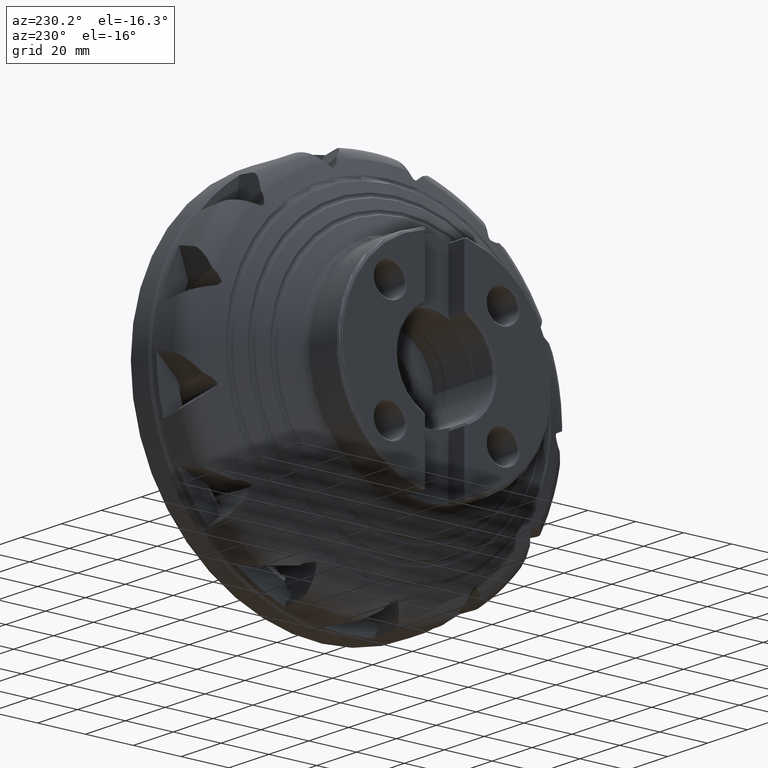
[diagram: clean part render]
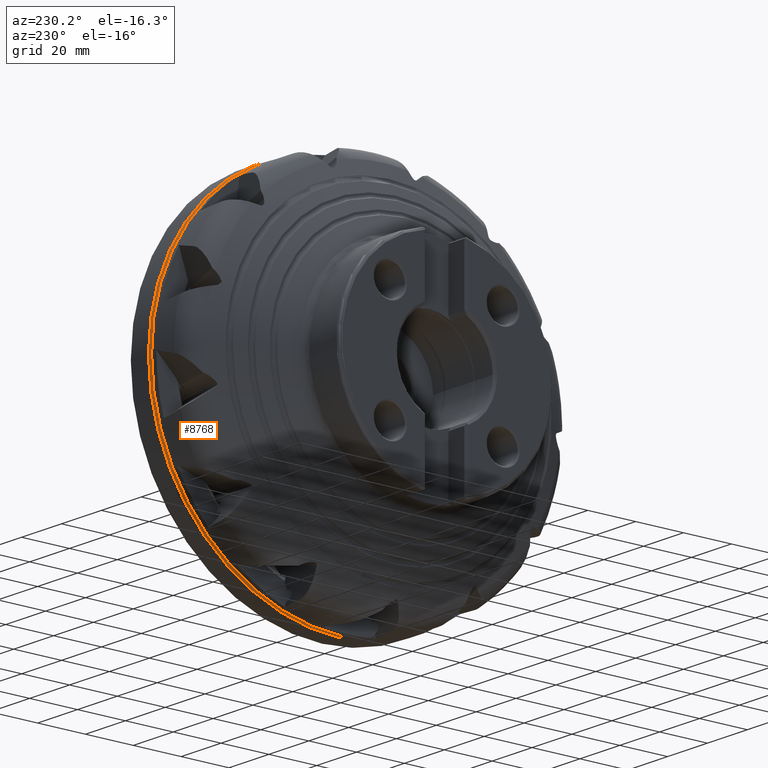
[diagram: same view with one face highlighted and labeled with its STEP entity id]
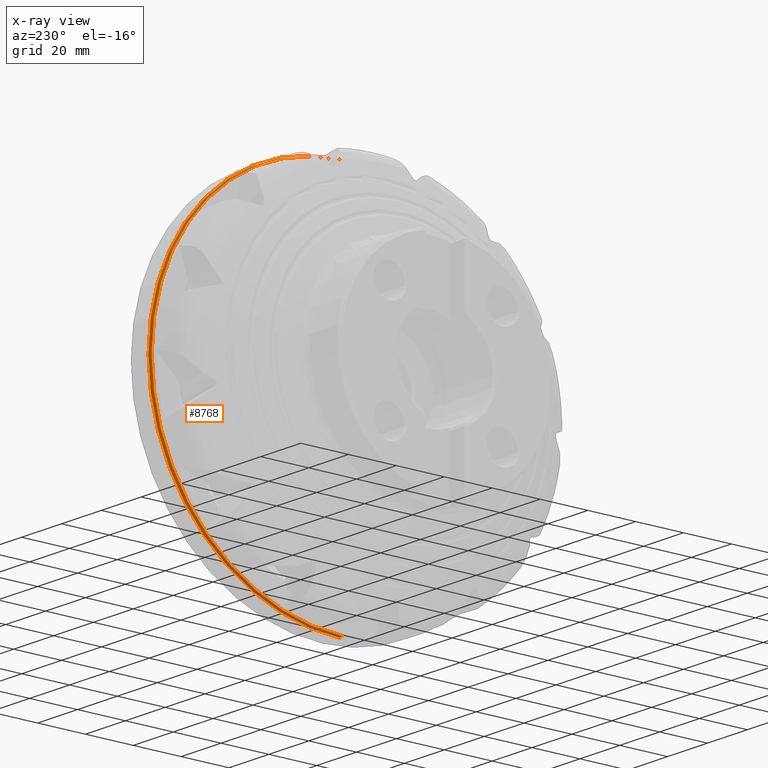
[diagram: x-ray of the same camera — body ghosted, the highlighted face saturated]
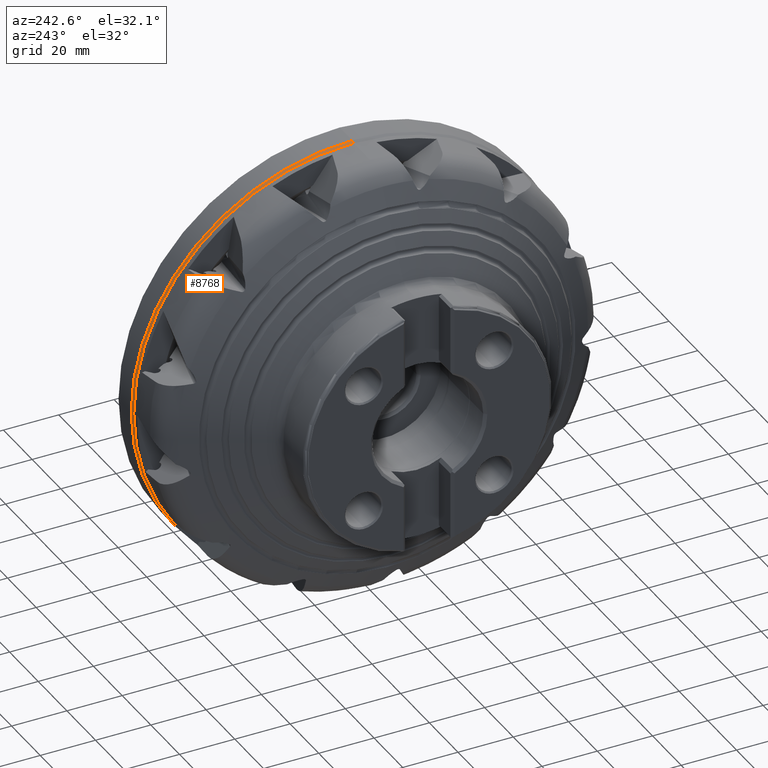
[diagram: same view with one face highlighted and labeled with its STEP entity id]
A machine part, auxiliary view. The second image highlights one B-rep face of the part: STEP entity #8768.
The next image is the same camera in x-ray: the body ghosted, the highlighted face saturated — about 0% of this face is hidden behind the body in this view.
A second angle (auxiliary view) of the same face is appended — the face is thin or edge-on in the first view.
In plain terms, the highlighted conical surface has half-angle 17.994 deg.
Its self-contained STEP definition (entity closure, byte-faithful):
#2616 = ORIENTED_EDGE ( 'NONE', *, *, #3362, .F. ) ;
#2618 = ORIENTED_EDGE ( 'NONE', *, *, #3356, .F. ) ;
#2621 = ORIENTED_EDGE ( 'NONE', *, *, #3353, .T. ) ;
#2622 = ORIENTED_EDGE ( 'NONE', *, *, #3348, .T. ) ;
#3348 = EDGE_CURVE ( 'NONE', #7797, #7748, #10402, .T. ) ;
#3353 = EDGE_CURVE ( 'NONE', #7748, #7776, #10405, .T. ) ;
#3356 = EDGE_CURVE ( 'NONE', #7804, #7776, #10410, .T. ) ;
#3362 = EDGE_CURVE ( 'NONE', #7797, #7804, #10416, .T. ) ;
#5237 = AXIS2_PLACEMENT_3D ( 'NONE', #13253, #13254, #13255 ) ;
#5240 = AXIS2_PLACEMENT_3D ( 'NONE', #13231, #13232, #13233 ) ;
#5395 = AXIS2_PLACEMENT_3D ( 'NONE', #15645, #15644, #15643 ) ;
#7748 = VERTEX_POINT ( 'NONE', #15328 ) ;
#7776 = VERTEX_POINT ( 'NONE', #15356 ) ;
#7797 = VERTEX_POINT ( 'NONE', #15377 ) ;
#7804 = VERTEX_POINT ( 'NONE', #15384 ) ;
#8768 = ADVANCED_FACE ( 'NONE', ( #11040 ), #11043, .T. ) ;
#10397 = VECTOR ( 'NONE', #13272, 1000.000000000000000 ) ;
#10402 = CIRCLE ( 'NONE', #5240, 79.57500000000000300 ) ;
#10405 = LINE ( 'NONE', #13242, #10408 ) ;
#10408 = VECTOR ( 'NONE', #13246, 1000.000000000000000 ) ;
#10410 = CIRCLE ( 'NONE', #5237, 79.93463628662731000 ) ;
#10416 = LINE ( 'NONE', #13266, #10397 ) ;
#11040 = FACE_OUTER_BOUND ( 'NONE', #11931, .T. ) ;
#11043 = CONICAL_SURFACE ( 'NONE', #5395, 79.57500000000000300, 0.3140582557615615400 ) ;
#11931 = EDGE_LOOP ( 'NONE', ( #2622, #2621, #2618, #2616 ) ) ;
#13231 = CARTESIAN_POINT ( 'NONE',  ( -8.653528960348200600, 0.0000000000000000000, 0.0000000000000000000 ) ) ;
#13232 = DIRECTION ( 'NONE',  ( 1.000000000000000000, -0.0000000000000000000, -0.0000000000000000000 ) ) ;
#13233 = DIRECTION ( 'NONE',  ( 0.0000000000000000000, 0.0000000000000000000, -1.000000000000000000 ) ) ;
#13242 = CARTESIAN_POINT ( 'NONE',  ( -8.653528960348200600, 9.745126904215063300E-015, 79.57500000000000300 ) ) ;
#13246 = DIRECTION ( 'NONE',  ( 0.9510877251255118700, 3.783190243946722600E-017, 0.3089209269628375200 ) ) ;
#13253 = CARTESIAN_POINT ( 'NONE',  ( -7.546301745009389000, 0.0000000000000000000, 0.0000000000000000000 ) ) ;
#13254 = DIRECTION ( 'NONE',  ( 1.000000000000000000, -0.0000000000000000000, -0.0000000000000000000 ) ) ;
#13255 = DIRECTION ( 'NONE',  ( 0.0000000000000000000, 0.0000000000000000000, -1.000000000000000000 ) ) ;
#13266 = CARTESIAN_POINT ( 'NONE',  ( -8.653528960348200600, 0.0000000000000000000, -79.57500000000000300 ) ) ;
#13272 = DIRECTION ( 'NONE',  ( 0.9510877251255118700, 0.0000000000000000000, -0.3089209269628375200 ) ) ;
#15328 = CARTESIAN_POINT ( 'NONE',  ( -8.653528960348200600, 9.745126904215063300E-015, 79.57500000000000300 ) ) ;
#15356 = CARTESIAN_POINT ( 'NONE',  ( -7.546301745009389000, 9.793172020060714100E-015, 79.93463628662731000 ) ) ;
#15377 = CARTESIAN_POINT ( 'NONE',  ( -8.653528960348200600, 0.0000000000000000000, -79.57500000000000300 ) ) ;
#15384 = CARTESIAN_POINT ( 'NONE',  ( -7.546301745009389000, 0.0000000000000000000, -79.93463628662731000 ) ) ;
#15643 = DIRECTION ( 'NONE',  ( 0.0000000000000000000, 0.0000000000000000000, -1.000000000000000000 ) ) ;
#15644 = DIRECTION ( 'NONE',  ( 1.000000000000000000, -0.0000000000000000000, -0.0000000000000000000 ) ) ;
#15645 = CARTESIAN_POINT ( 'NONE',  ( -8.653528960348200600, 0.0000000000000000000, 0.0000000000000000000 ) ) ;